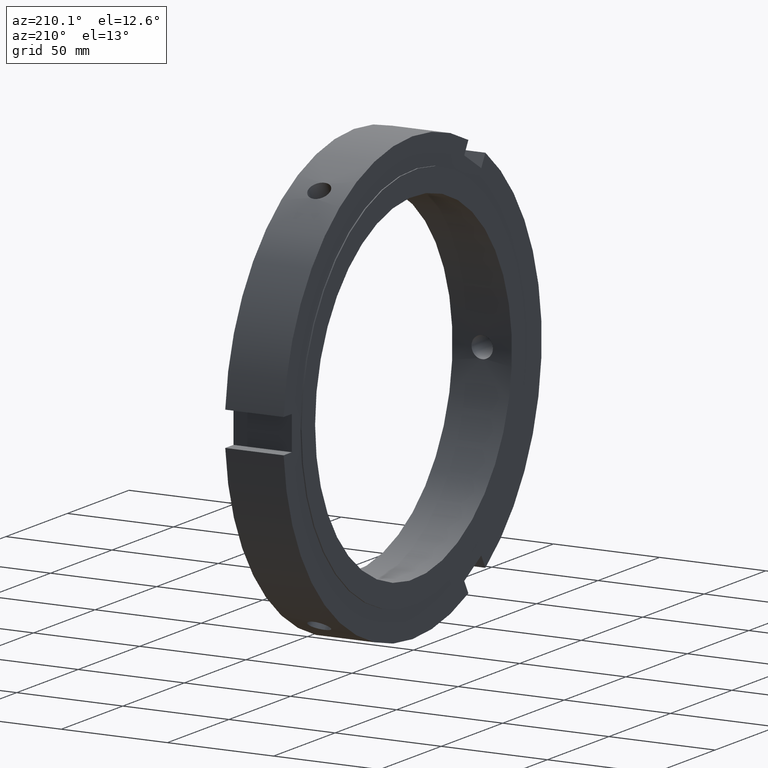
[diagram: clean part render]
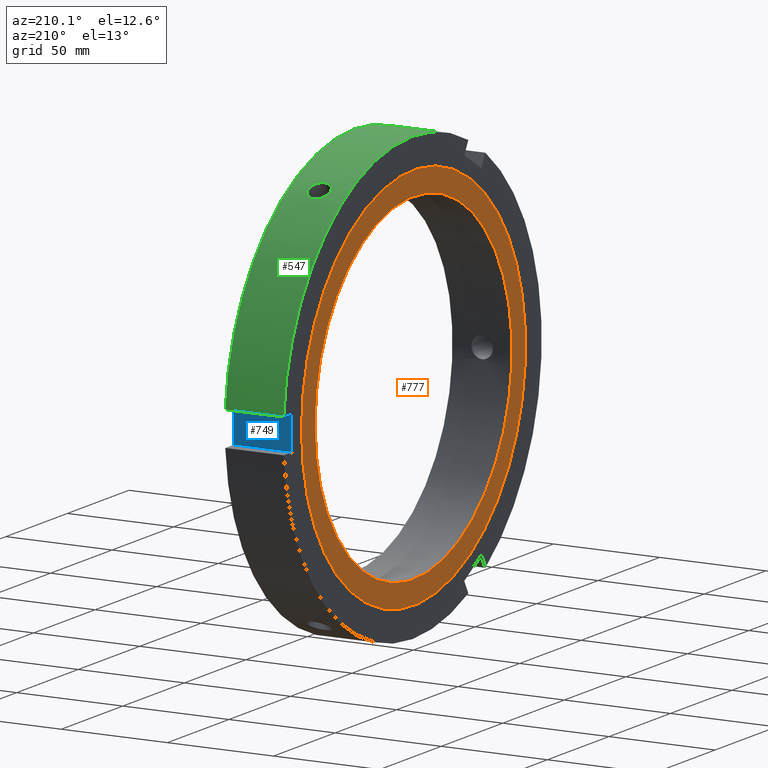
[diagram: same view with three faces highlighted in distinct colors, each labeled with its STEP entity id]
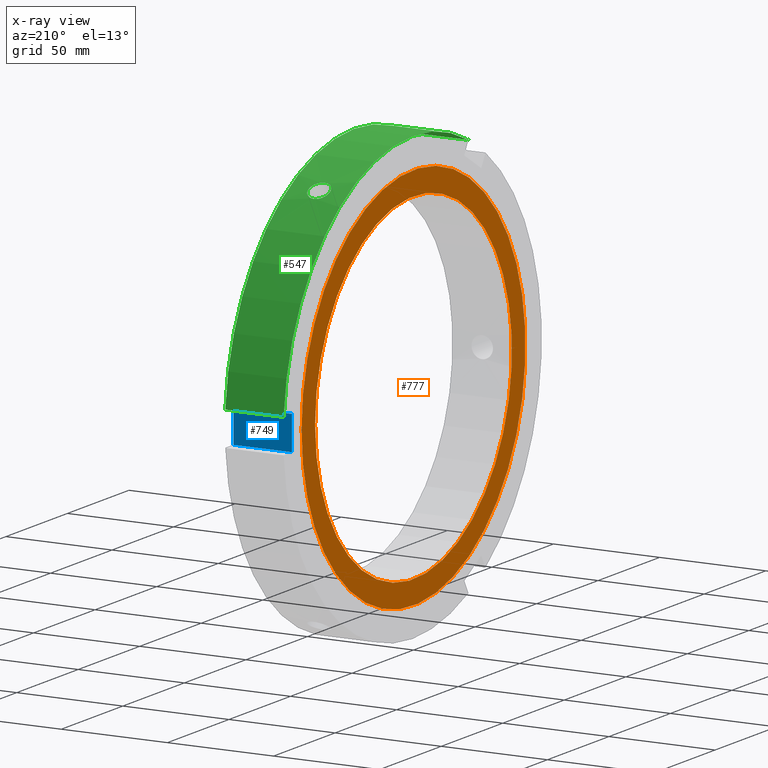
[diagram: x-ray of the same camera — body ghosted, the three highlighted faces saturated]
A machine part, auxiliary view with three faces highlighted in distinct colors.
The next image is the same camera in x-ray (body ghosted, the three faces saturated) — at least one of them is partly hidden behind the body in this view.
Their STEP definitions:

[orange] entity #777 — the highlighted planar face has unit normal (-1, 0, 0).
#750=CARTESIAN_POINT('',(-2.512193E-014,85.500000000000000,0.0));
#751=DIRECTION('',(-1.0,0.0,0.0));
#752=DIRECTION('',(0.0,0.0,1.0));
#753=AXIS2_PLACEMENT_3D('',#750,#751,#752);
#754=PLANE('',#753);
#755=CARTESIAN_POINT('',(-2.664535E-014,91.0,0.0));
#756=VERTEX_POINT('',#755);
#757=CARTESIAN_POINT('',(-2.664535E-014,0.0,0.0));
#758=DIRECTION('',(1.0,0.0,0.0));
#759=DIRECTION('',(0.0,1.0,0.0));
#760=AXIS2_PLACEMENT_3D('',#757,#758,#759);
#761=CIRCLE('',#760,91.0);
#762=EDGE_CURVE('',#756,#756,#761,.T.);
#763=ORIENTED_EDGE('',*,*,#762,.F.);
#764=EDGE_LOOP('',(#763));
#765=FACE_OUTER_BOUND('',#764,.T.);
#766=CARTESIAN_POINT('',(-2.359850E-014,80.0,0.0));
#767=VERTEX_POINT('',#766);
#768=CARTESIAN_POINT('',(-2.359658E-014,0.0,0.0));
#769=DIRECTION('',(1.0,0.0,0.0));
#770=DIRECTION('',(0.0,1.0,0.0));
#771=AXIS2_PLACEMENT_3D('',#768,#769,#770);
#772=CIRCLE('',#771,80.0);
#773=EDGE_CURVE('',#767,#767,#772,.T.);
#774=ORIENTED_EDGE('',*,*,#773,.T.);
#775=EDGE_LOOP('',(#774));
#776=FACE_BOUND('',#775,.T.);
#777=ADVANCED_FACE('',(#765,#776),#754,.T.);

[blue] entity #749 — the highlighted planar face has unit normal (0, -1, 0).
#465=CARTESIAN_POINT('',(27.999999999999979,98.0,-7.999999999999996));
#466=VERTEX_POINT('',#465);
#473=CARTESIAN_POINT('',(27.999999999999979,98.0,7.999999999999996));
#474=VERTEX_POINT('',#473);
#475=CARTESIAN_POINT('',(27.999999999999979,98.0,-7.999999999999995));
#476=DIRECTION('',(0.0,0.0,1.0));
#477=VECTOR('',#476,15.999999999999991);
#478=LINE('',#475,#477);
#479=EDGE_CURVE('',#466,#474,#478,.T.);
#690=CARTESIAN_POINT('',(0.499999999999972,98.0,-7.999999999999996));
#691=VERTEX_POINT('',#690);
#698=CARTESIAN_POINT('',(27.999999999999979,98.0,-7.999999999999996));
#699=DIRECTION('',(-1.0,0.0,0.0));
#700=VECTOR('',#699,27.500000000000007);
#701=LINE('',#698,#700);
#702=EDGE_CURVE('',#466,#691,#701,.T.);
#714=CARTESIAN_POINT('',(0.499999999999972,98.0,7.999999999999996));
#715=VERTEX_POINT('',#714);
#724=CARTESIAN_POINT('',(27.999999999999979,98.0,7.999999999999996));
#725=DIRECTION('',(-1.0,0.0,0.0));
#726=VECTOR('',#725,27.500000000000007);
#727=LINE('',#724,#726);
#728=EDGE_CURVE('',#474,#715,#727,.T.);
#733=CARTESIAN_POINT('',(27.999999999999979,98.0,7.999999999999996));
#734=DIRECTION('',(0.0,-1.0,0.0));
#735=DIRECTION('',(0.0,0.0,-1.0));
#736=AXIS2_PLACEMENT_3D('',#733,#734,#735);
#737=PLANE('',#736);
#738=CARTESIAN_POINT('',(0.499999999999972,98.0,7.999999999999996));
#739=DIRECTION('',(0.0,0.0,-1.0));
#740=VECTOR('',#739,15.999999999999991);
#741=LINE('',#738,#740);
#742=EDGE_CURVE('',#715,#691,#741,.T.);
#743=ORIENTED_EDGE('',*,*,#742,.F.);
#744=ORIENTED_EDGE('',*,*,#728,.F.);
#745=ORIENTED_EDGE('',*,*,#479,.F.);
#746=ORIENTED_EDGE('',*,*,#702,.T.);
#747=EDGE_LOOP('',(#743,#744,#745,#746));
#748=FACE_OUTER_BOUND('',#747,.T.);
#749=ADVANCED_FACE('',(#748),#737,.F.);

[green] entity #547 — the highlighted cylindrical surface (partial cylindrical patch) has radius 105 mm, axis along (1, 0, 0).
#175=CARTESIAN_POINT('',(13.999999999999979,56.815198724829017,88.300810833526242));
#176=VERTEX_POINT('',#175);
#177=CARTESIAN_POINT('',(13.999999999999979,56.815198724829010,88.300810833526256));
#178=CARTESIAN_POINT('',(14.634571136471465,56.815198724829010,88.300810833526256));
#179=CARTESIAN_POINT('',(15.311372523950229,56.708528601713645,88.369731266656757));
#180=CARTESIAN_POINT('',(16.556298304530191,56.273388234399732,88.647461310893618));
#181=CARTESIAN_POINT('',(17.124431001535733,55.944757503649846,88.855982155170636));
#182=CARTESIAN_POINT('',(18.021590047831666,55.183068389292970,89.331016002124230));
#183=CARTESIAN_POINT('',(18.410453091665811,54.699181388736676,89.629164600580467));
#184=CARTESIAN_POINT('',(18.926160779767741,53.632510079573741,90.271487492775748));
#185=CARTESIAN_POINT('',(19.052999999999976,53.049554625087438,90.615381886637437));
#186=CARTESIAN_POINT('',(19.052999999999976,51.950445374912647,91.249952908094642));
#187=CARTESIAN_POINT('',(18.926160779767752,51.361146366366242,91.582859944023639));
#188=CARTESIAN_POINT('',(18.410453091665833,50.271542769711374,92.185462949149098));
#189=CARTESIAN_POINT('',(18.021590047831662,49.771395009067390,92.455447084963794));
#190=CARTESIAN_POINT('',(17.124431001535729,48.979159072769676,92.877572284306126));
#191=CARTESIAN_POINT('',(16.556298304530191,48.634259359032285,93.057914423461270));
#192=CARTESIAN_POINT('',(15.311372523950233,48.176167901672017,93.295892013648796));
#193=CARTESIAN_POINT('',(14.634571136471466,48.063145994183472,93.353810833526282));
#194=CARTESIAN_POINT('',(13.365428863528493,48.063145994183472,93.353810833526282));
#195=CARTESIAN_POINT('',(12.688627476049724,48.176167901672017,93.295892013648796));
#196=CARTESIAN_POINT('',(11.443701695469766,48.634259359032285,93.057914423461270));
#197=CARTESIAN_POINT('',(10.875568998464228,48.979159072769676,92.877572284306126));
#198=CARTESIAN_POINT('',(9.978409952168297,49.771395009067390,92.455447084963794));
#199=CARTESIAN_POINT('',(9.589546908334135,50.271542769711374,92.185462949149127));
#200=CARTESIAN_POINT('',(9.073839220232211,51.361146366366235,91.582859944023653));
#201=CARTESIAN_POINT('',(8.946999999999978,51.950445374912661,91.249952908094642));
#202=CARTESIAN_POINT('',(8.946999999999981,53.049554625087438,90.615381886637437));
#203=CARTESIAN_POINT('',(9.073839220232218,53.632510079573741,90.271487492775748));
#204=CARTESIAN_POINT('',(9.589546908334143,54.699181388736676,89.629164600580467));
#205=CARTESIAN_POINT('',(9.978409952168294,55.183068389292970,89.331016002124230));
#206=CARTESIAN_POINT('',(10.875568998464223,55.944757503649846,88.855982155170636));
#207=CARTESIAN_POINT('',(11.443701695469759,56.273388234399732,88.647461310893632));
#208=CARTESIAN_POINT('',(12.688627476049723,56.708528601713645,88.369731266656771));
#209=CARTESIAN_POINT('',(13.365428863528495,56.815198724829017,88.300810833526242));
#210=CARTESIAN_POINT('',(13.999999999999979,56.815198724829017,88.300810833526242));
#211=B_SPLINE_CURVE_WITH_KNOTS('',3,(#177,#178,#179,#180,#181,#182,#183,#184,#185,#186,#187,#188,#189,#190,#191,#192,#193,#194,#195,#196,#197,#198,#199,#200,#201,#202,#203,#204,#205,#206,#207,#208,#209,#210),.UNSPECIFIED.,.T.,.U.,(4,2,2,2,2,2,2,2,2,2,2,2,2,2,2,2,4),(0.0,0.190371340941446,0.380742681882891,0.571113988320056,0.761485294757221,0.951856601194387,1.142227907631552,1.332599248572998,1.522970589514444,1.713341930455890,1.903713271397336,2.094084577834502,2.284455884271667,2.474827190708832,2.665198497145997,2.855569838087442,3.045941179028888),.UNSPECIFIED.);
#212=EDGE_CURVE('',#176,#176,#211,.T.);
#265=CARTESIAN_POINT('',(0.499999999999972,-45.419194030715396,94.668351700028182));
#266=VERTEX_POINT('',#265);
#281=CARTESIAN_POINT('',(27.999999999999979,-45.419194030715396,94.668351700028182));
#282=VERTEX_POINT('',#281);
#289=CARTESIAN_POINT('',(0.499999999999972,-45.419194030715396,94.668351700028168));
#290=DIRECTION('',(1.0,0.0,0.0));
#291=VECTOR('',#290,27.500000000000007);
#292=LINE('',#289,#291);
#293=EDGE_CURVE('',#266,#282,#292,.T.);
#481=CARTESIAN_POINT('',(27.999999999999979,104.694794521981850,7.999999999999995));
#482=VERTEX_POINT('',#481);
#489=CARTESIAN_POINT('',(27.999999999999979,0.0,0.0));
#490=DIRECTION('',(1.0,0.0,0.0));
#491=DIRECTION('',(0.0,1.0,0.0));
#492=AXIS2_PLACEMENT_3D('',#489,#490,#491);
#493=CIRCLE('',#492,105.0);
#494=EDGE_CURVE('',#482,#282,#493,.T.);
#520=CARTESIAN_POINT('',(14.249999999999975,0.0,0.0));
#521=DIRECTION('',(1.0,0.0,0.0));
#522=DIRECTION('',(0.0,1.0,0.0));
#523=AXIS2_PLACEMENT_3D('',#520,#521,#522);
#524=CYLINDRICAL_SURFACE('',#523,105.0);
#525=ORIENTED_EDGE('',*,*,#293,.T.);
#526=ORIENTED_EDGE('',*,*,#494,.F.);
#527=CARTESIAN_POINT('',(0.499999999999972,104.694794521981850,7.999999999999995));
#528=VERTEX_POINT('',#527);
#529=CARTESIAN_POINT('',(27.999999999999979,104.694794521981850,7.999999999999995));
#530=DIRECTION('',(-1.0,0.0,0.0));
#531=VECTOR('',#530,27.500000000000007);
#532=LINE('',#529,#531);
#533=EDGE_CURVE('',#482,#528,#532,.T.);
#534=ORIENTED_EDGE('',*,*,#533,.T.);
#535=CARTESIAN_POINT('',(0.499999999999972,0.0,0.0));
#536=DIRECTION('',(1.0,0.0,0.0));
#537=DIRECTION('',(0.0,1.0,0.0));
#538=AXIS2_PLACEMENT_3D('',#535,#536,#537);
#539=CIRCLE('',#538,105.0);
#540=EDGE_CURVE('',#528,#266,#539,.T.);
#541=ORIENTED_EDGE('',*,*,#540,.T.);
#542=EDGE_LOOP('',(#525,#526,#534,#541));
#543=FACE_OUTER_BOUND('',#542,.T.);
#544=ORIENTED_EDGE('',*,*,#212,.T.);
#545=EDGE_LOOP('',(#544));
#546=FACE_BOUND('',#545,.T.);
#547=ADVANCED_FACE('',(#543,#546),#524,.T.);